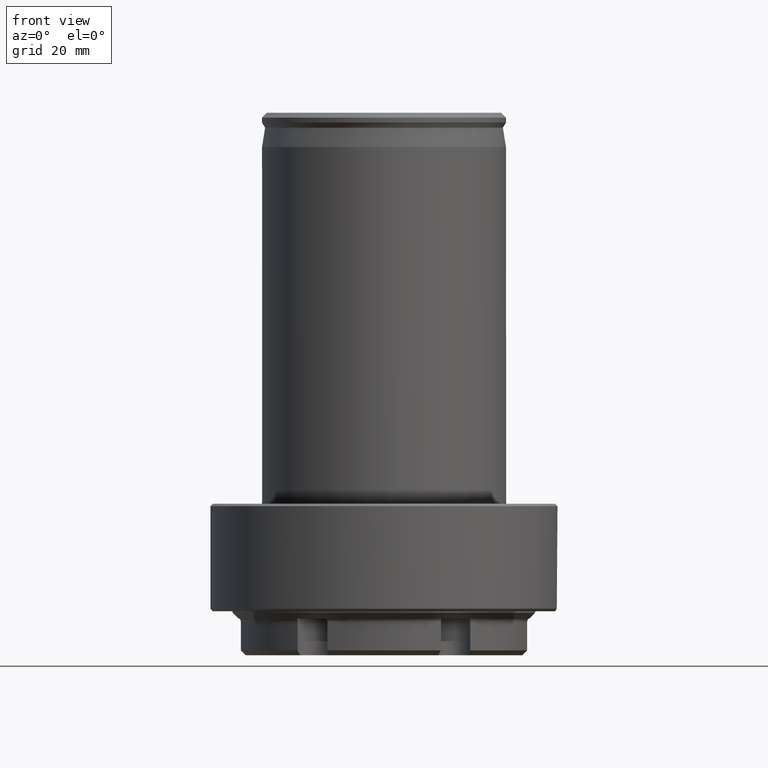
[diagram: clean part render]
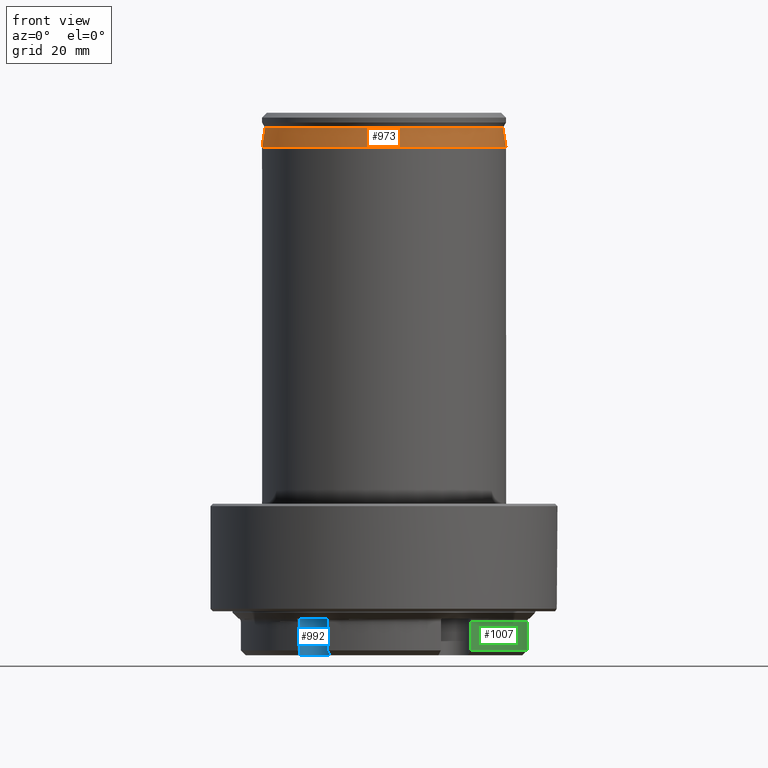
[diagram: same view with three faces highlighted in distinct colors, each labeled with its STEP entity id]
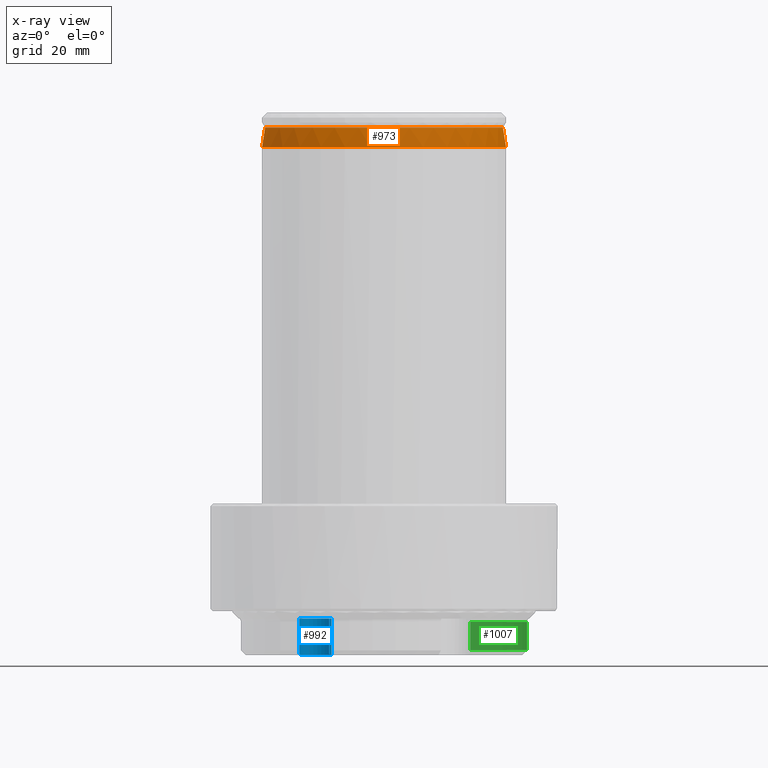
[diagram: x-ray of the same camera — body ghosted, the three highlighted faces saturated]
A machine part, front view with three faces highlighted in distinct colors.
The next image is the same camera in x-ray (body ghosted, the three faces saturated) — at least one of them is partly hidden behind the body in this view.
Their STEP definitions:

[orange] entity #973 — the highlighted conical surface has half-angle 8.614 deg.
#50=B_SPLINE_CURVE_WITH_KNOTS('',3,(#1512,#1513,#1514,#1515),
 .UNSPECIFIED.,.F.,.F.,(4,4),(0.0312957937508116,0.0355560148125993),
 .UNSPECIFIED.);
#51=B_SPLINE_CURVE_WITH_KNOTS('',3,(#1516,#1517,#1518,#1519),
 .UNSPECIFIED.,.F.,.F.,(4,4),(0.0640936339530825,0.068389315777373),
 .UNSPECIFIED.);
#90=CONICAL_SURFACE('',#1055,25.,0.150342651477056);
#200=ORIENTED_EDGE('',*,*,#489,.F.);
#201=ORIENTED_EDGE('',*,*,#490,.T.);
#202=ORIENTED_EDGE('',*,*,#487,.T.);
#203=ORIENTED_EDGE('',*,*,#491,.T.);
#487=EDGE_CURVE('',#631,#630,#725,.T.);
#489=EDGE_CURVE('',#632,#633,#726,.T.);
#490=EDGE_CURVE('',#632,#631,#50,.T.);
#491=EDGE_CURVE('',#630,#633,#51,.T.);
#630=VERTEX_POINT('',#1501);
#631=VERTEX_POINT('',#1503);
#632=VERTEX_POINT('',#1510);
#633=VERTEX_POINT('',#1511);
#725=CIRCLE('',#1054,24.4);
#726=CIRCLE('',#1056,25.);
#787=EDGE_LOOP('',(#200,#201,#202,#203));
#867=FACE_BOUND('',#787,.T.);
#973=ADVANCED_FACE('',(#867),#90,.T.);
#1054=AXIS2_PLACEMENT_3D('',#1502,#1193,#1194);
#1055=AXIS2_PLACEMENT_3D('',#1508,#1195,#1196);
#1056=AXIS2_PLACEMENT_3D('',#1509,#1197,#1198);
#1193=DIRECTION('',(0.,1.66533453693774E-16,-1.));
#1194=DIRECTION('',(-1.,0.,0.));
#1195=DIRECTION('',(0.,1.66533453693774E-16,-1.));
#1196=DIRECTION('',(-1.,0.,0.));
#1197=DIRECTION('',(0.,1.66533453693774E-16,-1.));
#1198=DIRECTION('',(-1.,0.,0.));
#1501=CARTESIAN_POINT('',(-8.69022439296013,22.8,76.9607695154587));
#1502=CARTESIAN_POINT('',(-6.93889390390723E-15,-2.68886195834637E-14,76.9607695154587));
#1503=CARTESIAN_POINT('',(8.69022439296011,22.8,76.9607695154587));
#1508=CARTESIAN_POINT('',(-6.93889390390723E-15,-2.62290189567693E-14,73.));
#1509=CARTESIAN_POINT('',(-6.93889390390723E-15,-2.62290189567693E-14,73.));
#1510=CARTESIAN_POINT('',(10.2547549946354,22.8,73.));
#1511=CARTESIAN_POINT('',(-10.2547549946354,22.8,73.));
#1512=CARTESIAN_POINT('',(10.2547549946353,22.8,73.));
#1513=CARTESIAN_POINT('',(9.76293610741241,22.8,74.3317380340482));
#1514=CARTESIAN_POINT('',(9.24611944865124,22.8,75.6538095156947));
#1515=CARTESIAN_POINT('',(8.69022439296005,22.8,76.9607695154587));
#1516=CARTESIAN_POINT('',(-8.69022439296011,22.8,76.9607695154587));
#1517=CARTESIAN_POINT('',(-9.24606861063529,22.8,75.6539290405091));
#1518=CARTESIAN_POINT('',(-9.76289726222585,22.8,74.3318432183224));
#1519=CARTESIAN_POINT('',(-10.2547549946355,22.8,73.0000000000001));

[blue] entity #992 — the highlighted cylindrical surface (edge-blend (fillet) strip) has radius 3.5 mm, axis along (0, 0, -1).
#35=CYLINDRICAL_SURFACE('',#1104,3.5);
#68=B_SPLINE_CURVE_WITH_KNOTS('',3,(#1689,#1690,#1691,#1692),
 .UNSPECIFIED.,.F.,.F.,(4,4),(2.83042619822891E-7,0.000303718629715481),
 .UNSPECIFIED.);
#69=B_SPLINE_CURVE_WITH_KNOTS('',3,(#1694,#1695,#1696,#1697),
 .UNSPECIFIED.,.F.,.F.,(4,4),(5.6349944224174E-7,0.000303999086477127),
 .UNSPECIFIED.);
#116=LINE('',#1699,#158);
#117=LINE('',#1703,#159);
#158=VECTOR('',#1306,1000.);
#159=VECTOR('',#1309,1000.);
#296=ORIENTED_EDGE('',*,*,#549,.T.);
#297=ORIENTED_EDGE('',*,*,#511,.F.);
#298=ORIENTED_EDGE('',*,*,#548,.T.);
#299=ORIENTED_EDGE('',*,*,#550,.F.);
#300=ORIENTED_EDGE('',*,*,#551,.T.);
#301=ORIENTED_EDGE('',*,*,#552,.T.);
#511=EDGE_CURVE('',#651,#652,#742,.T.);
#548=EDGE_CURVE('',#651,#680,#68,.T.);
#549=EDGE_CURVE('',#681,#652,#69,.T.);
#550=EDGE_CURVE('',#682,#680,#116,.T.);
#551=EDGE_CURVE('',#682,#683,#755,.T.);
#552=EDGE_CURVE('',#683,#681,#117,.T.);
#651=VERTEX_POINT('',#1565);
#652=VERTEX_POINT('',#1567);
#680=VERTEX_POINT('',#1688);
#681=VERTEX_POINT('',#1698);
#682=VERTEX_POINT('',#1700);
#683=VERTEX_POINT('',#1702);
#742=CIRCLE('',#1082,3.5);
#755=CIRCLE('',#1105,3.5);
#814=EDGE_LOOP('',(#296,#297,#298,#299,#300,#301));
#894=FACE_BOUND('',#814,.T.);
#992=ADVANCED_FACE('',(#894),#35,.F.);
#1082=AXIS2_PLACEMENT_3D('',#1566,#1252,#1253);
#1104=AXIS2_PLACEMENT_3D('',#1693,#1304,#1305);
#1105=AXIS2_PLACEMENT_3D('',#1701,#1307,#1308);
#1252=DIRECTION('',(-1.11014459076379E-17,-2.76999328708812E-16,1.));
#1253=DIRECTION('',(0.866025403784439,-0.5,5.79664150580807E-17));
#1304=DIRECTION('',(1.11014459076379E-17,2.76999328708812E-16,-1.));
#1305=DIRECTION('',(-1.,-2.77555756156289E-17,-6.66125971388958E-17));
#1306=DIRECTION('',(1.11014459076379E-17,2.76999328708812E-16,-1.));
#1307=DIRECTION('',(-1.11014459076379E-17,-2.76999328708812E-16,1.));
#1308=DIRECTION('',(0.866025403784439,-0.5,5.79664150580807E-17));
#1309=DIRECTION('',(1.11014459076379E-17,2.76999328708812E-16,-1.));
#1565=CARTESIAN_POINT('',(-11.1171745377807,-26.2423023055623,-31.));
#1566=CARTESIAN_POINT('',(-14.25,-24.6817240078565,-31.));
#1567=CARTESIAN_POINT('',(-17.1679131815176,-22.7489067208048,-31.));
#1688=CARTESIAN_POINT('',(-11.2189110867545,-26.4317240078565,-30.7858919692775));
#1689=CARTESIAN_POINT('',(-11.1171745377807,-26.2423023055623,-31.));
#1690=CARTESIAN_POINT('',(-11.149101723841,-26.3063954059046,-30.9285301538661));
#1691=CARTESIAN_POINT('',(-11.1830087231305,-26.3695392899479,-30.8571612813655));
#1692=CARTESIAN_POINT('',(-11.2189110867545,-26.4317240078565,-30.7858919692775));
#1693=CARTESIAN_POINT('',(-14.25,-24.6817240078565,-23.5));
#1694=CARTESIAN_POINT('',(-17.2810889132455,-22.9317240078565,-30.7858919692775));
#1695=CARTESIAN_POINT('',(-17.2451865630773,-22.869539313254,-30.8571612546547));
#1696=CARTESIAN_POINT('',(-17.2074558563704,-22.8086030474874,-30.9285301271538));
#1697=CARTESIAN_POINT('',(-17.1679131815176,-22.7489067208048,-31.));
#1698=CARTESIAN_POINT('',(-17.2810889132455,-22.9317240078565,-30.7858919692775));
#1699=CARTESIAN_POINT('',(-11.2189110867545,-26.4317240078565,-23.5));
#1700=CARTESIAN_POINT('',(-11.2189110867545,-26.4317240078565,-23.5));
#1701=CARTESIAN_POINT('',(-14.25,-24.6817240078565,-23.5));
#1702=CARTESIAN_POINT('',(-17.2810889132455,-22.9317240078565,-23.5));
#1703=CARTESIAN_POINT('',(-17.2810889132455,-22.9317240078565,-23.5));

[green] entity #1007 — the highlighted cylindrical surface (partial cylindrical patch) has radius 29.5 mm, axis along (0, 0, -1).
#39=CYLINDRICAL_SURFACE('',#1128,29.5);
#131=LINE('',#1807,#173);
#132=LINE('',#1811,#174);
#173=VECTOR('',#1367,1000.);
#174=VECTOR('',#1372,1000.);
#370=ORIENTED_EDGE('',*,*,#586,.F.);
#371=ORIENTED_EDGE('',*,*,#587,.T.);
#372=ORIENTED_EDGE('',*,*,#588,.F.);
#373=ORIENTED_EDGE('',*,*,#538,.F.);
#538=EDGE_CURVE('',#672,#673,#752,.T.);
#586=EDGE_CURVE('',#703,#672,#131,.T.);
#587=EDGE_CURVE('',#703,#704,#764,.T.);
#588=EDGE_CURVE('',#673,#704,#132,.F.);
#672=VERTEX_POINT('',#1653);
#673=VERTEX_POINT('',#1655);
#703=VERTEX_POINT('',#1806);
#704=VERTEX_POINT('',#1810);
#752=CIRCLE('',#1099,29.5);
#764=CIRCLE('',#1129,29.5);
#829=EDGE_LOOP('',(#370,#371,#372,#373));
#909=FACE_BOUND('',#829,.T.);
#1007=ADVANCED_FACE('',(#909),#39,.T.);
#1099=AXIS2_PLACEMENT_3D('',#1654,#1292,#1293);
#1128=AXIS2_PLACEMENT_3D('',#1808,#1368,#1369);
#1129=AXIS2_PLACEMENT_3D('',#1809,#1370,#1371);
#1292=DIRECTION('',(1.11014459076379E-17,2.76999328708812E-16,-1.));
#1293=DIRECTION('',(-1.,-2.77555756156289E-17,-6.66125971388958E-17));
#1367=DIRECTION('',(1.11014459076379E-17,2.76999328708812E-16,-1.));
#1368=DIRECTION('',(1.11014459076379E-17,2.76999328708812E-16,-1.));
#1369=DIRECTION('',(-1.,-2.77555756156289E-17,-6.66125971388958E-17));
#1370=DIRECTION('',(1.11014459076379E-17,2.76999328708812E-16,-1.));
#1371=DIRECTION('',(-1.,-2.77555756156289E-17,-6.66125971388958E-17));
#1372=DIRECTION('',(1.11014459076379E-17,2.76999328708812E-16,-1.));
#1653=CARTESIAN_POINT('',(29.2916370317536,-3.5,-30.));
#1654=CARTESIAN_POINT('',(-6.71098889810975E-15,-6.81152278850235E-15,-30.));
#1655=CARTESIAN_POINT('',(17.6769074291223,-23.6173017879317,-30.));
#1806=CARTESIAN_POINT('',(29.2916370317536,-3.5,-24.2071067811865));
#1807=CARTESIAN_POINT('',(29.2916370317536,-3.5,-31.));
#1808=CARTESIAN_POINT('',(-6.69988745220211E-15,-6.53452345979354E-15,-31.));
#1809=CARTESIAN_POINT('',(-6.77529838882713E-15,-8.41615032139551E-15,-24.2071067811865));
#1810=CARTESIAN_POINT('',(17.6769074291223,-23.6173017879317,-24.2071067811865));
#1811=CARTESIAN_POINT('',(17.6769074291223,-23.6173017879317,-31.));